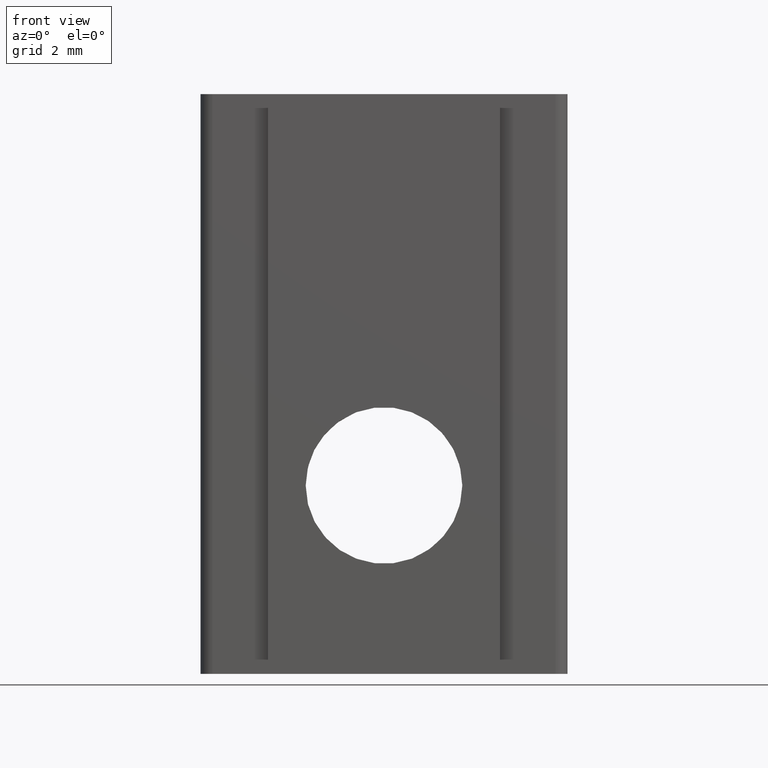
[diagram: clean part render]
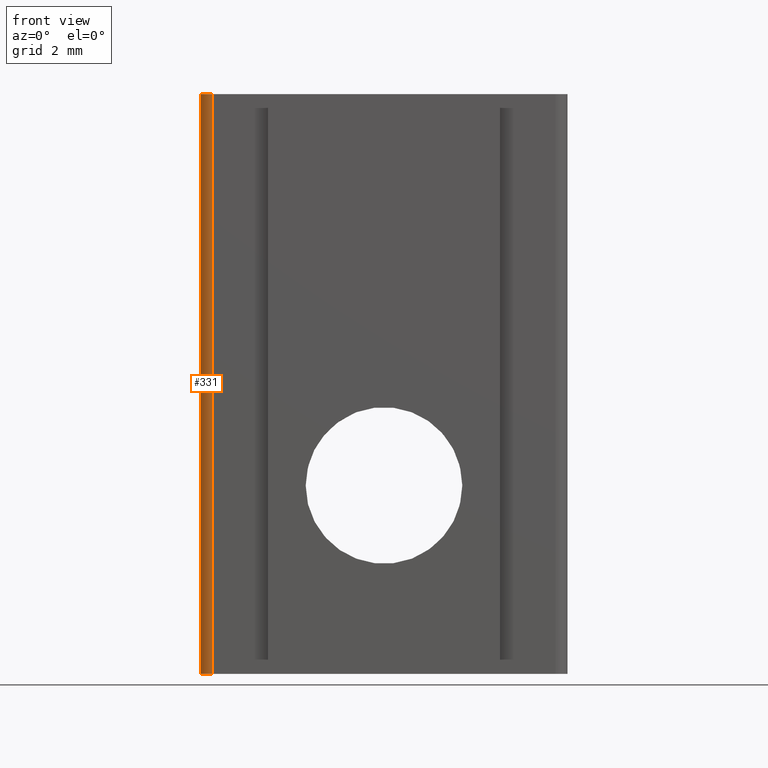
[diagram: same view with one face highlighted and labeled with its STEP entity id]
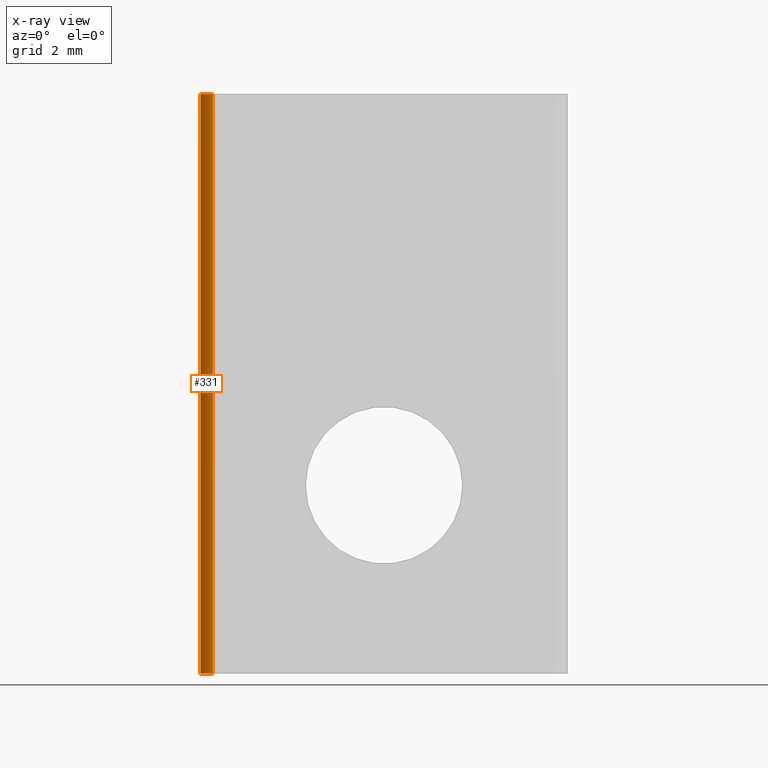
[diagram: x-ray of the same camera — body ghosted, the highlighted face saturated]
A machine part, front view. The second image highlights one B-rep face of the part: STEP entity #331.
The next image is the same camera in x-ray: the body ghosted, the highlighted face saturated — about 0% of this face is hidden behind the body in this view.
In plain terms, the highlighted cylindrical surface (edge-blend (fillet) strip) has radius 0.25 mm, axis along (0, 0, 1).
Its self-contained STEP definition (entity closure, byte-faithful):
#23=LINE('',#571,#48);
#45=LINE('',#676,#70);
#48=VECTOR('',#398,10.);
#70=VECTOR('',#452,10.);
#77=CYLINDRICAL_SURFACE('',#378,0.25);
#104=FACE_OUTER_BOUND('',#122,.T.);
#122=EDGE_LOOP('',(#288,#289,#290,#291));
#134=CIRCLE('',#379,0.25);
#135=CIRCLE('',#380,0.25);
#147=VERTEX_POINT('',#568);
#148=VERTEX_POINT('',#570);
#170=VERTEX_POINT('',#672);
#171=VERTEX_POINT('',#674);
#181=EDGE_CURVE('',#147,#148,#23,.T.);
#215=EDGE_CURVE('',#170,#171,#45,.T.);
#216=EDGE_CURVE('',#170,#147,#134,.T.);
#217=EDGE_CURVE('',#148,#171,#135,.T.);
#288=ORIENTED_EDGE('',*,*,#216,.F.);
#289=ORIENTED_EDGE('',*,*,#215,.T.);
#290=ORIENTED_EDGE('',*,*,#217,.F.);
#291=ORIENTED_EDGE('',*,*,#181,.F.);
#331=ADVANCED_FACE('',(#104),#77,.T.);
#378=AXIS2_PLACEMENT_3D('',#677,#453,#454);
#379=AXIS2_PLACEMENT_3D('',#678,#455,#456);
#380=AXIS2_PLACEMENT_3D('',#679,#457,#458);
#398=DIRECTION('',(0.,0.,1.));
#452=DIRECTION('',(0.,0.,1.));
#453=DIRECTION('center_axis',(0.,0.,1.));
#454=DIRECTION('ref_axis',(0.839729366215846,-0.543005148700022,0.));
#455=DIRECTION('center_axis',(0.,0.,-1.));
#456=DIRECTION('ref_axis',(0.839729366215846,-0.543005148700022,0.));
#457=DIRECTION('center_axis',(0.,0.,1.));
#458=DIRECTION('ref_axis',(0.839729366215846,-0.543005148700022,0.));
#568=CARTESIAN_POINT('',(-3.75993234155396,0.385751287175005,0.));
#570=CARTESIAN_POINT('',(-3.75993234155396,0.385751287175005,12.));
#571=CARTESIAN_POINT('',(-3.75993234155396,0.385751287175005,0.));
#672=CARTESIAN_POINT('',(-3.55,0.,0.));
#674=CARTESIAN_POINT('',(-3.55,0.,12.));
#676=CARTESIAN_POINT('',(-3.55,0.,0.));
#677=CARTESIAN_POINT('Origin',(-3.55,0.25,0.));
#678=CARTESIAN_POINT('Origin',(-3.55,0.25,0.));
#679=CARTESIAN_POINT('Origin',(-3.55,0.25,12.));